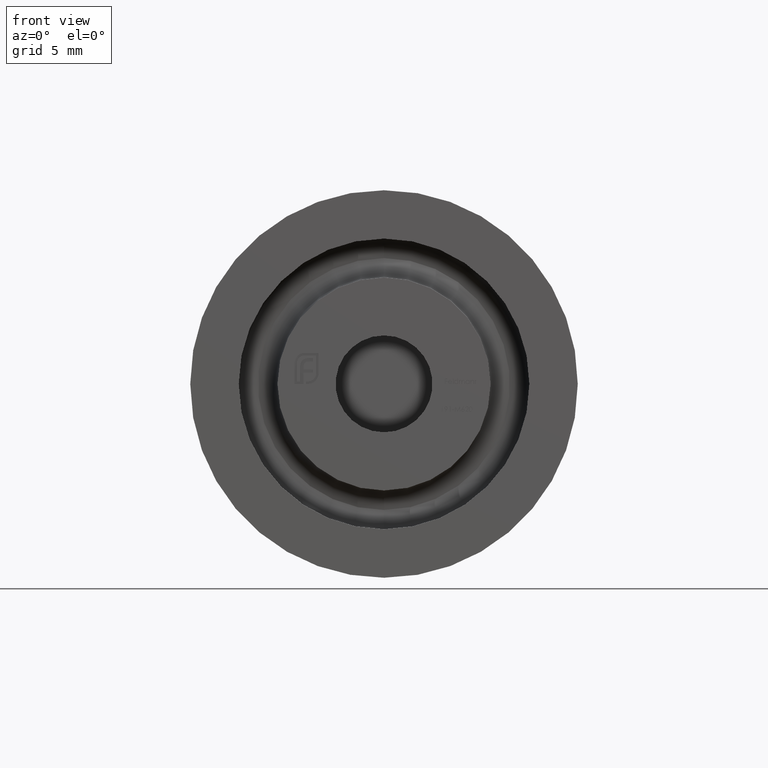
[diagram: clean part render]
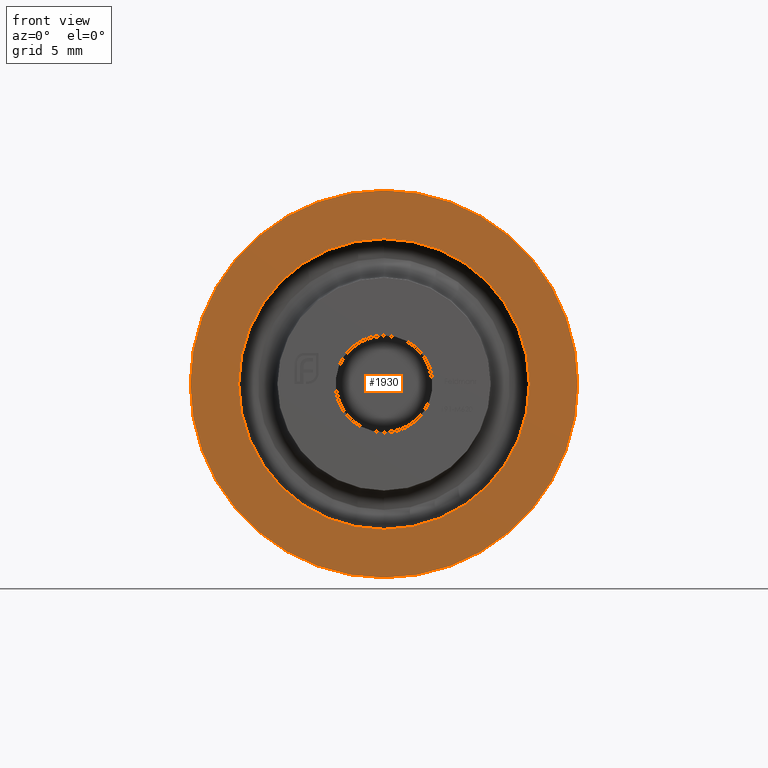
[diagram: same view with one face highlighted and labeled with its STEP entity id]
A machine part, front view. The second image highlights one B-rep face of the part: STEP entity #1930.
In plain terms, the highlighted planar face has unit normal (0, -1, -0).
Its self-contained STEP definition (entity closure, byte-faithful):
#34 = EDGE_CURVE ( 'NONE', #1386, #8640, #9889, .T. ) ;
#78 = CARTESIAN_POINT ( 'NONE',  ( 1.224646799147353256E-15, -1.530808498934191521E-15, 10.00000000000000000 ) ) ;
#173 = ORIENTED_EDGE ( 'NONE', *, *, #34, .F. ) ;
#292 = DIRECTION ( 'NONE',  ( 0.000000000000000000, -1.000000000000000000, 0.000000000000000000 ) ) ;
#454 = FACE_BOUND ( 'NONE', #9239, .T. ) ;
#772 = DIRECTION ( 'NONE',  ( 0.000000000000000000, 0.000000000000000000, -1.000000000000000000 ) ) ;
#791 = CIRCLE ( 'NONE', #3976, 7.500000000000000000 ) ;
#1350 = ORIENTED_EDGE ( 'NONE', *, *, #3779, .T. ) ;
#1386 = VERTEX_POINT ( 'NONE', #12605 ) ;
#1930 = ADVANCED_FACE ( 'NONE', ( #454, #9352 ), #14552, .T. ) ;
#2545 = AXIS2_PLACEMENT_3D ( 'NONE', #11140, #13346, #772 ) ;
#3033 = AXIS2_PLACEMENT_3D ( 'NONE', #8654, #9713, #6287 ) ;
#3627 = EDGE_CURVE ( 'NONE', #8640, #1386, #791, .T. ) ;
#3779 = EDGE_CURVE ( 'NONE', #14345, #10008, #11491, .T. ) ;
#3976 = AXIS2_PLACEMENT_3D ( 'NONE', #6090, #292, #8302 ) ;
#4459 = CARTESIAN_POINT ( 'NONE',  ( 0.000000000000000000, 0.000000000000000000, 0.000000000000000000 ) ) ;
#5557 = CARTESIAN_POINT ( 'NONE',  ( 0.000000000000000000, -1.530808498934191521E-15, -10.00000000000000000 ) ) ;
#6090 = CARTESIAN_POINT ( 'NONE',  ( 0.000000000000000000, 0.000000000000000000, 0.000000000000000000 ) ) ;
#6287 = DIRECTION ( 'NONE',  ( 0.000000000000000000, 0.000000000000000000, -1.000000000000000000 ) ) ;
#6304 = AXIS2_PLACEMENT_3D ( 'NONE', #4459, #13533, #10123 ) ;
#6681 = ORIENTED_EDGE ( 'NONE', *, *, #11717, .T. ) ;
#7498 = CARTESIAN_POINT ( 'NONE',  ( 9.184850993605147944E-16, 0.000000000000000000, 7.500000000000000000 ) ) ;
#7704 = DIRECTION ( 'NONE',  ( -0.000000000000000000, -1.000000000000000000, -0.000000000000000000 ) ) ;
#8302 = DIRECTION ( 'NONE',  ( 0.000000000000000000, 0.000000000000000000, -1.000000000000000000 ) ) ;
#8640 = VERTEX_POINT ( 'NONE', #7498 ) ;
#8654 = CARTESIAN_POINT ( 'NONE',  ( 0.000000000000000000, -1.530808498934191521E-15, 0.000000000000000000 ) ) ;
#9239 = EDGE_LOOP ( 'NONE', ( #173, #11472 ) ) ;
#9352 = FACE_OUTER_BOUND ( 'NONE', #10253, .T. ) ;
#9713 = DIRECTION ( 'NONE',  ( -0.000000000000000000, -1.000000000000000000, -0.000000000000000000 ) ) ;
#9889 = CIRCLE ( 'NONE', #6304, 7.500000000000000000 ) ;
#10008 = VERTEX_POINT ( 'NONE', #78 ) ;
#10123 = DIRECTION ( 'NONE',  ( 0.000000000000000000, 0.000000000000000000, -1.000000000000000000 ) ) ;
#10253 = EDGE_LOOP ( 'NONE', ( #1350, #6681 ) ) ;
#10550 = CIRCLE ( 'NONE', #3033, 10.00000000000000000 ) ;
#11140 = CARTESIAN_POINT ( 'NONE',  ( 10.00000000000000000, -7.654042494670957606E-16, 0.000000000000000000 ) ) ;
#11472 = ORIENTED_EDGE ( 'NONE', *, *, #3627, .F. ) ;
#11491 = CIRCLE ( 'NONE', #12522, 10.00000000000000000 ) ;
#11717 = EDGE_CURVE ( 'NONE', #10008, #14345, #10550, .T. ) ;
#12460 = DIRECTION ( 'NONE',  ( 0.000000000000000000, 0.000000000000000000, -1.000000000000000000 ) ) ;
#12522 = AXIS2_PLACEMENT_3D ( 'NONE', #13546, #7704, #12460 ) ;
#12605 = CARTESIAN_POINT ( 'NONE',  ( 0.000000000000000000, 0.000000000000000000, -7.500000000000000000 ) ) ;
#13346 = DIRECTION ( 'NONE',  ( 0.000000000000000000, -1.000000000000000000, -0.000000000000000000 ) ) ;
#13533 = DIRECTION ( 'NONE',  ( 0.000000000000000000, -1.000000000000000000, 0.000000000000000000 ) ) ;
#13546 = CARTESIAN_POINT ( 'NONE',  ( 0.000000000000000000, -1.530808498934191521E-15, 0.000000000000000000 ) ) ;
#14345 = VERTEX_POINT ( 'NONE', #5557 ) ;
#14552 = PLANE ( 'NONE',  #2545 ) ;